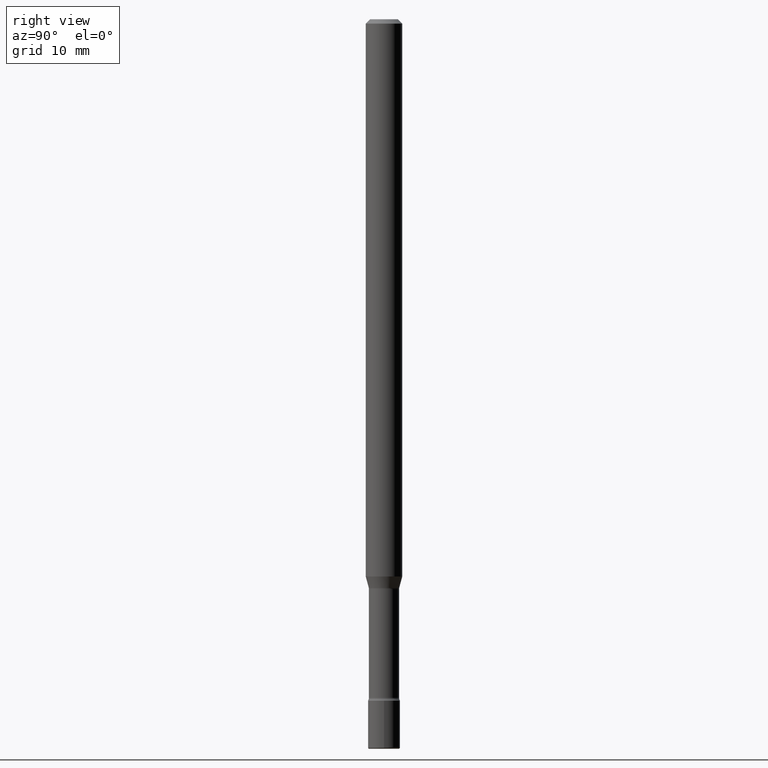
[diagram: clean part render]
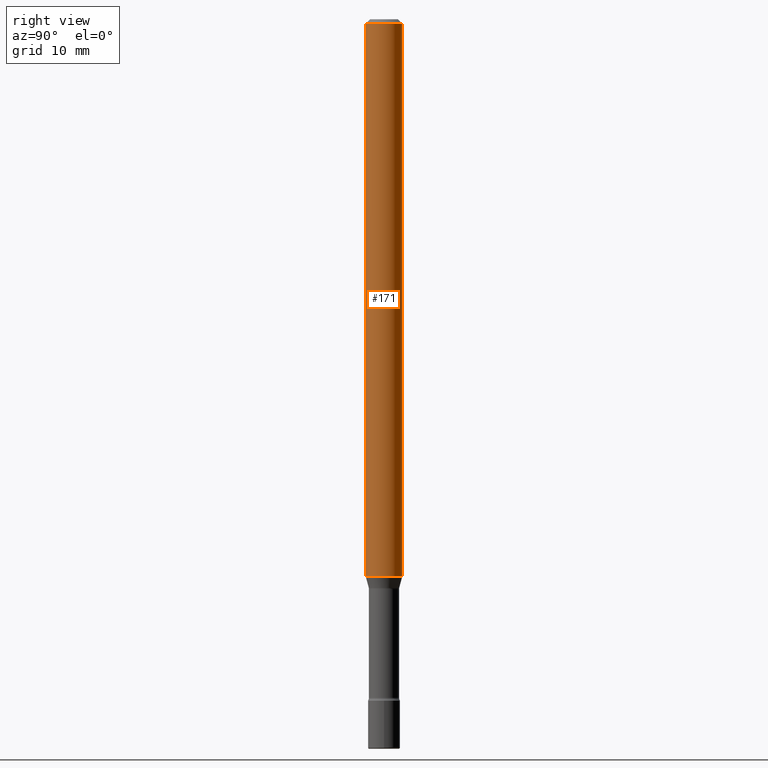
[diagram: same view with one face highlighted and labeled with its STEP entity id]
A machine part, right view. The second image highlights one B-rep face of the part: STEP entity #171.
In plain terms, the highlighted cylindrical surface (edge-blend (fillet) strip) has radius 1.5875 mm, axis along (-0, 0, 1).
Its self-contained STEP definition (entity closure, byte-faithful):
#11 = VERTEX_POINT ( 'NONE', #13 ) ;
#13 = CARTESIAN_POINT ( 'NONE',  ( -4.364351673553447815E-16, -0.06250000000000664746, -1.909693851278255972 ) ) ;
#45 = VERTEX_POINT ( 'NONE', #329 ) ;
#47 = CARTESIAN_POINT ( 'NONE',  ( 4.670046372068011457E-29, -6.667732578202665138E-15, -1.909693851278256194 ) ) ;
#54 = CYLINDRICAL_SURFACE ( 'NONE', #249, 0.06250000000000000000 ) ;
#64 = DIRECTION ( 'NONE',  ( -6.982962677686265922E-15, -1.000000000000000000, 3.491519111159943586E-15 ) ) ;
#69 = CARTESIAN_POINT ( 'NONE',  ( -1.169113584055446105E-44, 1.669184350826100908E-30, 4.780733988912460139E-16 ) ) ;
#89 = ORIENTED_EDGE ( 'NONE', *, *, #485, .T. ) ;
#100 = EDGE_CURVE ( 'NONE', #112, #45, #465, .T. ) ;
#112 = VERTEX_POINT ( 'NONE', #429 ) ;
#115 = VECTOR ( 'NONE', #430, 39.37007874015748143 ) ;
#122 = LINE ( 'NONE', #374, #439 ) ;
#134 = VERTEX_POINT ( 'NONE', #135 ) ;
#135 = CARTESIAN_POINT ( 'NONE',  ( 4.440892098501093562E-16, 0.06249999999999334560, -1.909693851278256416 ) ) ;
#142 = DIRECTION ( 'NONE',  ( -2.445442429917292137E-29, 3.491519111159942797E-15, 1.000000000000000000 ) ) ;
#171 = ADVANCED_FACE ( 'NONE', ( #436 ), #54, .T. ) ;
#185 = LINE ( 'NONE', #347, #115 ) ;
#193 = CIRCLE ( 'NONE', #262, 0.06250000000000000000 ) ;
#249 = AXIS2_PLACEMENT_3D ( 'NONE', #69, #360, #64 ) ;
#251 = DIRECTION ( 'NONE',  ( -2.445442429917292137E-29, 3.491519111159942797E-15, 1.000000000000000000 ) ) ;
#258 = DIRECTION ( 'NONE',  ( -2.445442429917292137E-29, 3.491519111159943192E-15, 1.000000000000000000 ) ) ;
#262 = AXIS2_PLACEMENT_3D ( 'NONE', #47, #251, #455 ) ;
#298 = ORIENTED_EDGE ( 'NONE', *, *, #468, .F. ) ;
#329 = CARTESIAN_POINT ( 'NONE',  ( 4.440892098501096520E-16, 0.06249999999999995837, -0.01500000000000024578 ) ) ;
#347 = CARTESIAN_POINT ( 'NONE',  ( -4.364351673553916201E-16, -0.06250000000000000000, 6.962933433387425620E-16 ) ) ;
#358 = ORIENTED_EDGE ( 'NONE', *, *, #364, .T. ) ;
#360 = DIRECTION ( 'NONE',  ( -2.445442429917292137E-29, 3.491519111159942797E-15, 1.000000000000000000 ) ) ;
#364 = EDGE_CURVE ( 'NONE', #134, #45, #122, .T. ) ;
#374 = CARTESIAN_POINT ( 'NONE',  ( 4.440892098500625669E-16, 0.06250000000000000000, 2.598534544437496137E-16 ) ) ;
#425 = CARTESIAN_POINT ( 'NONE',  ( 3.668163644875944826E-31, -5.237278666739923958E-17, -0.01500000000000002720 ) ) ;
#429 = CARTESIAN_POINT ( 'NONE',  ( -4.364351673553912750E-16, -0.06250000000000005551, -0.01499999999999981036 ) ) ;
#430 = DIRECTION ( 'NONE',  ( -2.445442429917292137E-29, 3.491519111159943192E-15, 1.000000000000000000 ) ) ;
#436 = FACE_OUTER_BOUND ( 'NONE', #537, .T. ) ;
#439 = VECTOR ( 'NONE', #258, 39.37007874015748143 ) ;
#455 = DIRECTION ( 'NONE',  ( -6.982962677686265922E-15, -1.000000000000000000, 4.370956789862821150E-15 ) ) ;
#465 = CIRCLE ( 'NONE', #559, 0.06250000000000000000 ) ;
#468 = EDGE_CURVE ( 'NONE', #11, #112, #185, .T. ) ;
#485 = EDGE_CURVE ( 'NONE', #11, #134, #193, .T. ) ;
#503 = ORIENTED_EDGE ( 'NONE', *, *, #100, .F. ) ;
#537 = EDGE_LOOP ( 'NONE', ( #89, #358, #503, #298 ) ) ;
#559 = AXIS2_PLACEMENT_3D ( 'NONE', #425, #142, #571 ) ;
#571 = DIRECTION ( 'NONE',  ( -6.982962677686265922E-15, -1.000000000000000000, 3.483106191921935554E-15 ) ) ;